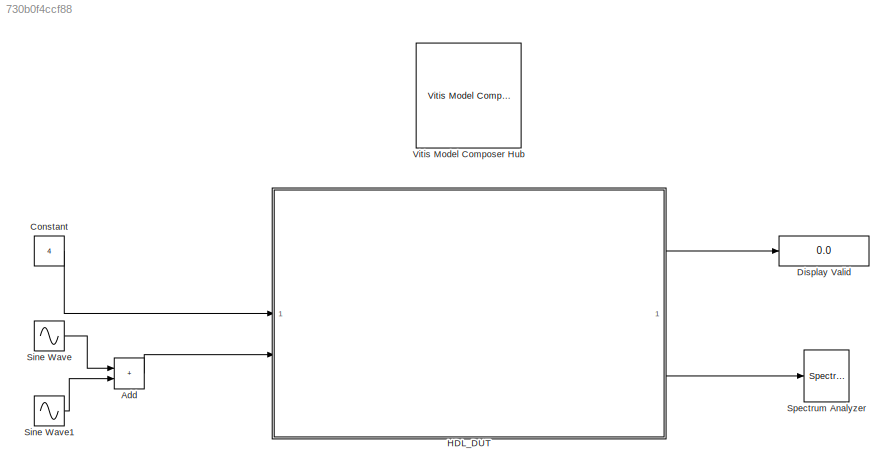
MODEL slx_730b0f4ccf88
KIND model
CONFIG AbsTol = auto
CONFIG EnableMultiTasking = on
CONFIG FixedStep = auto
CONFIG MaxStep = auto
CONFIG MinStep = auto
CONFIG PreLoadFcn = Lab4_init
CONFIG RelTol = 1e-3
CONFIG SampleTimeConstraint = Unconstrained
CONFIG SolverName = ode45
CONFIG StartTime = 0.0
CONFIG StopTime = 30000/491.52e6
BLOCK [Sum] Add
  IconShape = rectangular
BLOCK [Constant] Constant
  Value = 4
BLOCK [Display] Display Valid
  Decimation = 1
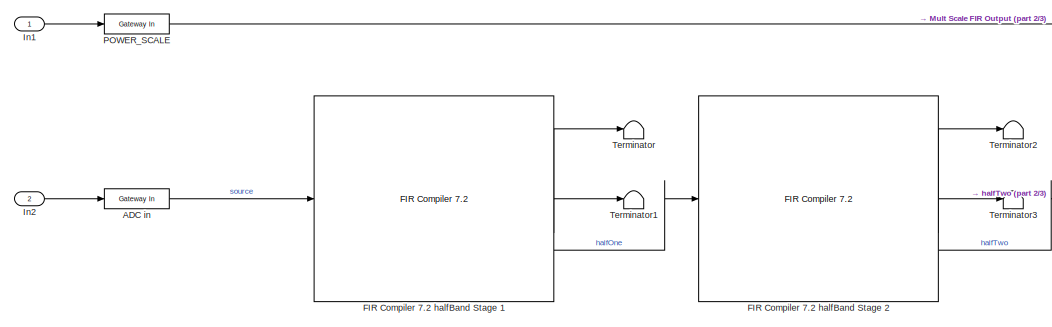
[diagram: HDL_DUT - part 1/3, middle left region]
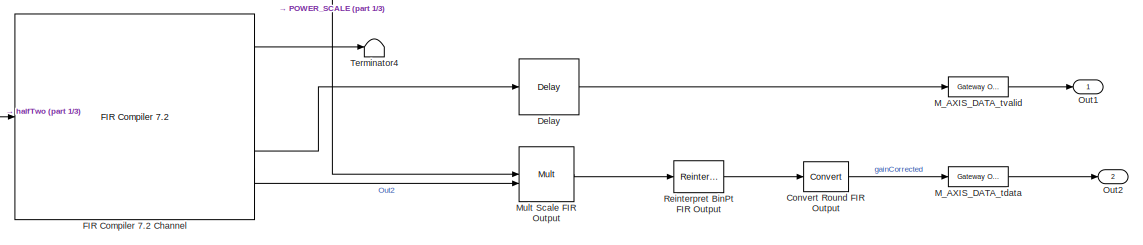
[diagram: HDL_DUT - part 2/3, middle right region]
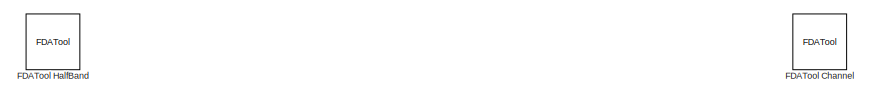
[diagram: HDL_DUT - part 3/3, bottom center region]
BLOCK [SubSystem] HDL_DUT
BLOCK [Reference] HDL_DUT/ADC in  REF=hdlBasic/Gateway In
  SourceBlock = hdlBasic/Gateway In
  SourceType = Gateway In Block
BLOCK [Reference] HDL_DUT/Convert Round FIR Output  REF=hdlBasic/Convert
  SourceBlock = hdlBasic/Convert
  SourceType = Type Converter Block
BLOCK [Reference] HDL_DUT/Delay  REF=hdlBasic/Delay
  SourceBlock = hdlBasic/Delay
  SourceType = Delay Block
BLOCK [Reference] HDL_DUT/FDATool Channel  REF=hdlUtilities/FDATool
  SourceBlock = hdlUtilities/FDATool
  SourceType = Xilinx FDATool Interface Block
  UserDataPersistent = on
BLOCK [Reference] HDL_DUT/FDATool HalfBand  REF=hdlUtilities/FDATool
  SourceBlock = hdlUtilities/FDATool
  SourceType = Xilinx FDATool Interface Block
  UserDataPersistent = on
BLOCK [Reference] HDL_DUT/FIR Compiler 7.2 Channel  REF=hdlDSPIP/FIR Compiler 7.2 
  SourceBlock = hdlDSPIP/FIR Compiler 7.2
  SourceType = FIR Compiler 7.2 Block
BLOCK [Reference] HDL_DUT/FIR Compiler 7.2 halfBand Stage 1  REF=hdlDSPIP/FIR Compiler 7.2 
  SourceBlock = hdlDSPIP/FIR Compiler 7.2
  SourceType = FIR Compiler 7.2 Block
BLOCK [Reference] HDL_DUT/FIR Compiler 7.2 halfBand Stage 2  REF=hdlDSPIP/FIR Compiler 7.2 
  SourceBlock = hdlDSPIP/FIR Compiler 7.2
  SourceType = FIR Compiler 7.2 Block
BLOCK [Inport] HDL_DUT/In1
BLOCK [Inport] HDL_DUT/In2
  Port = 2
BLOCK [Reference] HDL_DUT/M_AXIS_DATA_tdata  REF=hdlBasic/Gateway Out
  SourceBlock = hdlBasic/Gateway Out
  SourceType = Gateway Out Block
BLOCK [Reference] HDL_DUT/M_AXIS_DATA_tvalid  REF=hdlBasic/Gateway Out
  SourceBlock = hdlBasic/Gateway Out
  SourceType = Gateway Out Block
BLOCK [Reference] HDL_DUT/Mult Scale FIR Output  REF=hdlBasic/Mult
  SourceBlock = hdlBasic/Mult
  SourceType = Multiplier Block
BLOCK [Outport] HDL_DUT/Out1
BLOCK [Outport] HDL_DUT/Out2
  Port = 2
BLOCK [Reference] HDL_DUT/POWER_SCALE  REF=hdlBasic/Gateway In
  SourceBlock = hdlBasic/Gateway In
  SourceType = Gateway In Block
BLOCK [Reference] HDL_DUT/Reinterpret BinPt FIR Output  REF=hdlBasic/Reinterpret
  SourceBlock = hdlBasic/Reinterpret
  SourceType = Type Reinterpreter Block
BLOCK [Terminator] HDL_DUT/Terminator
BLOCK [Terminator] HDL_DUT/Terminator1
BLOCK [Terminator] HDL_DUT/Terminator2
BLOCK [Terminator] HDL_DUT/Terminator3
BLOCK [Terminator] HDL_DUT/Terminator4
BLOCK [Sin] Sine Wave
  Frequency = 2*pi*20e6/periodScale
  SampleTime = 0
BLOCK [Sin] Sine Wave1
  Amplitude = 0.25
  Frequency = 2*pi*1e6/periodScale
  SampleTime = 0
BLOCK [SpectrumAnalyzer] Spectrum Analyzer
  AllowFFTLengthLessThanSamplesPerUpdate = on
  AveragingMethod = Exponential
  AxesScaling = Manual
  ChannelNames = [""]
  DefaultConfigurationName = spbscopes.SpectrumAnalyzerBlockCfg
  GraphicalSettings = {"GraphicalSettings":{"Style":{"AxesColor":"[0 0 0]","DefaultMarker":"none","DisplayName":"","LabelsColor":"[0.686274509803922 0.686274509803922 0.686274509803922]","Line":"1","LineColor":"[[1 1 0.0666666666666667],[1 0 1],[0 1 1],[1 0 0],[0 1 0],[0 0 1],[1 1 0],[1 0 1],[0 1 1],[1 0 0],[0 1 0],[0 0 1],[1 1 0],[1 0 1],[0 1 1],[1 0 0],[0 1 0],[0 0 1],[1 1 0],[1 0 1],[0 1 1],[1 0 0],[0 1 0],[0 0 1],[...<+1728ch>
  Method = Welch
  SampleRate = 61440000
  ScopeSpecificationString = spbscopes.SpectrumAnalyzerBlockCfg('CurrentConfiguration', extmgr.ConfigurationSet(extmgr.Configuration('Core','General UI',true,'FigureColor',[0.16        0.16        0.16]),extmgr.Configuration('Visuals','Spectrum',true,'Title','','YLabel',' dBm','MinYLim','-144.1149','MaxYLim','42.4377','Legend',false,'AxesProperties',struct('XGrid',{'off','off'},'YGrid',{'off','off'},'ZGrid',{'off','off'},'Col...<+4257ch>
  Span = 491520000
  StartFrequency = -245760000
  StopFrequency = 245760000
  WasSavedAsWebScope = on
  WindowPosition = [302 200 871 420]
  YLabel = dBm
  YLimits = [-144.1149,42.4377]
BLOCK [Reference] Vitis Model Composer Hub  REF=vmcUtilities/Vitis Model Composer Hub
  SourceBlock = vmcUtilities/Vitis Model Composer Hub
  SourceType = VMC Hub
  Tag = genX
  UserDataPersistent = on
LINE Add:1 -> HDL_DUT:2
LINE Constant:1 -> HDL_DUT:1
LINE HDL_DUT/ADC in:1 -> HDL_DUT/FIR Compiler 7.2 halfBand Stage 1:1
LINE HDL_DUT/Convert Round FIR Output:1 -> HDL_DUT/M_AXIS_DATA_tdata:1
LINE HDL_DUT/Delay:1 -> HDL_DUT/M_AXIS_DATA_tvalid:1
LINE HDL_DUT/FIR Compiler 7.2 Channel:1 -> HDL_DUT/Terminator4:1
LINE HDL_DUT/FIR Compiler 7.2 Channel:2 -> HDL_DUT/Delay:1
LINE HDL_DUT/FIR Compiler 7.2 Channel:3 -> HDL_DUT/Mult Scale FIR Output:2
LINE HDL_DUT/FIR Compiler 7.2 halfBand Stage 1:1 -> HDL_DUT/Terminator:1
LINE HDL_DUT/FIR Compiler 7.2 halfBand Stage 1:2 -> HDL_DUT/Terminator1:1
LINE HDL_DUT/FIR Compiler 7.2 halfBand Stage 1:3 -> HDL_DUT/FIR Compiler 7.2 halfBand Stage 2:1
LINE HDL_DUT/FIR Compiler 7.2 halfBand Stage 2:1 -> HDL_DUT/Terminator2:1
LINE HDL_DUT/FIR Compiler 7.2 halfBand Stage 2:2 -> HDL_DUT/Terminator3:1
LINE HDL_DUT/FIR Compiler 7.2 halfBand Stage 2:3 -> HDL_DUT/FIR Compiler 7.2 Channel:1
LINE HDL_DUT/In1:1 -> HDL_DUT/POWER_SCALE:1
LINE HDL_DUT/In2:1 -> HDL_DUT/ADC in:1
LINE HDL_DUT/M_AXIS_DATA_tdata:1 -> HDL_DUT/Out2:1
LINE HDL_DUT/M_AXIS_DATA_tvalid:1 -> HDL_DUT/Out1:1
LINE HDL_DUT/Mult Scale FIR Output:1 -> HDL_DUT/Reinterpret BinPt FIR Output:1
LINE HDL_DUT/POWER_SCALE:1 -> HDL_DUT/Mult Scale FIR Output:1
LINE HDL_DUT/Reinterpret BinPt FIR Output:1 -> HDL_DUT/Convert Round FIR Output:1
LINE HDL_DUT:1 -> Display Valid:1
LINE HDL_DUT:2 -> Spectrum Analyzer:1
LINE Sine Wave1:1 -> Add:2
LINE Sine Wave:1 -> Add:1
